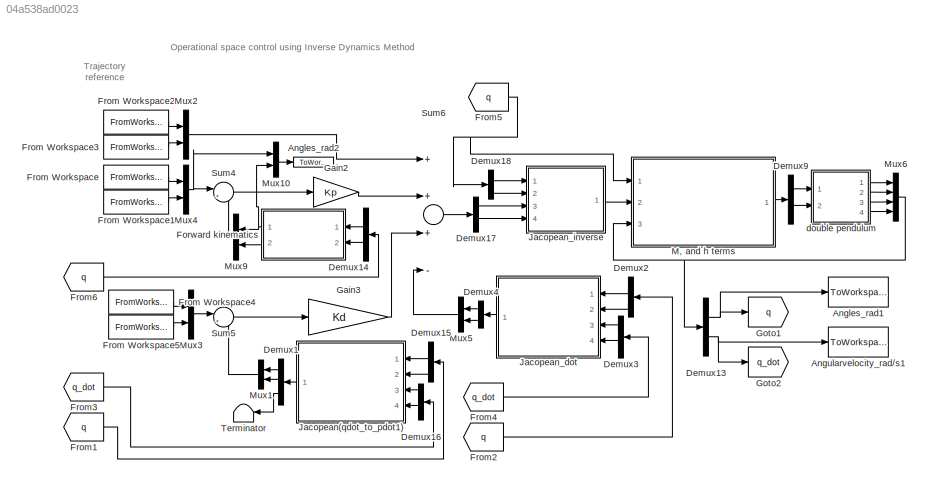
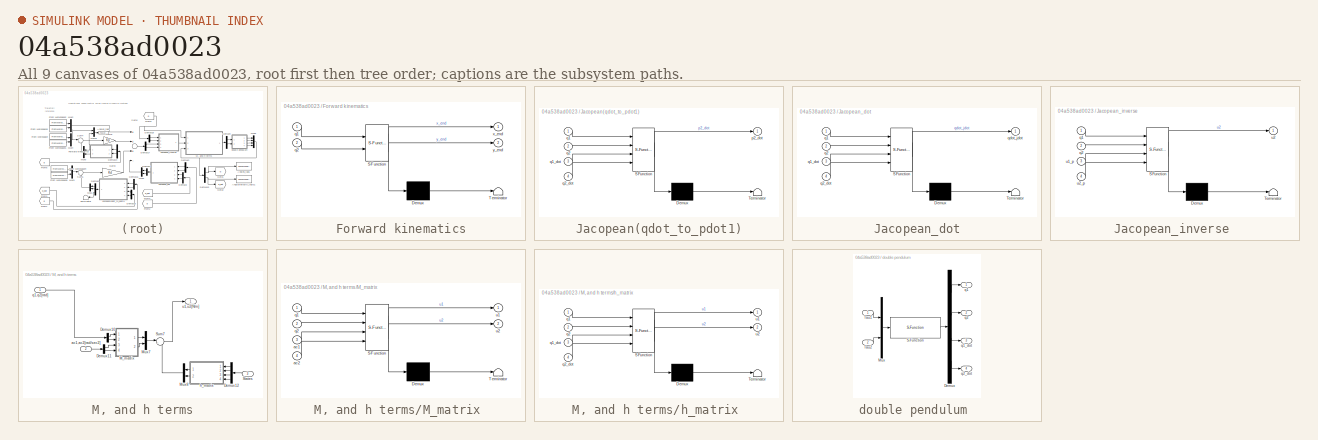
[diagram: thumbnail index - all 9 canvases of the model, root first then tree order]
MODEL slx_04a538ad0023
KIND model
CONFIG AbsTol = auto
CONFIG EnableMultiTasking = off
CONFIG FixedStep = auto
CONFIG MaxStep = auto
CONFIG MinStep = auto
CONFIG RelTol = 1e-3
CONFIG SampleTimeConstraint = Unconstrained
CONFIG Solver = ode45
CONFIG SolverName = ode45
CONFIG StartTime = 0.0
CONFIG StopTime = 5
BLOCK [ToWorkspace] Angles_rad1
  FixptAsFi = on
  MaxDataPoints = inf
  Ports = [1]
  SampleTime = -1
  Save2DSignal = 3-D array (concatenate along third dimension)
  SaveFormat = Timeseries
  VariableName = q
BLOCK [ToWorkspace] Angles_rad2
  FixptAsFi = on
  MaxDataPoints = inf
  Ports = [1]
  SampleTime = -1
  Save2DSignal = 3-D array (concatenate along third dimension)
  SaveFormat = Timeseries
  VariableName = xs
BLOCK [ToWorkspace] Angularvelocity_rad//s1
  FixptAsFi = on
  MaxDataPoints = inf
  Ports = [1]
  SampleTime = -1
  Save2DSignal = 3-D array (concatenate along third dimension)
  SaveFormat = Timeseries
  VariableName = q_dot
BLOCK [Demux] Demux1
  DisplayOption = bar
  Outputs = 3
  Ports = [1, 3]
BLOCK [Demux] Demux13
  DisplayOption = bar
  Outputs = 2
  Ports = [1, 2]
BLOCK [Demux] Demux14
  DisplayOption = bar
  Outputs = 2
  Ports = [1, 2]
BLOCK [Demux] Demux15
  DisplayOption = bar
  Outputs = 2
  Ports = [1, 2]
BLOCK [Demux] Demux16
  DisplayOption = bar
  Outputs = 2
  Ports = [1, 2]
BLOCK [Demux] Demux17
  DisplayOption = bar
  Outputs = 2
  Ports = [1, 2]
BLOCK [Demux] Demux18
  DisplayOption = bar
  Outputs = 2
  Ports = [1, 2]
BLOCK [Demux] Demux2
  DisplayOption = bar
  Outputs = 2
  Ports = [1, 2]
BLOCK [Demux] Demux3
  DisplayOption = bar
  Outputs = 2
  Ports = [1, 2]
BLOCK [Demux] Demux4
  DisplayOption = bar
  Outputs = 2
  Ports = [1, 2]
BLOCK [Demux] Demux9
  DisplayOption = bar
  Outputs = 2
  Ports = [1, 2]
BLOCK [SubSystem] Forward kinematics
  ErrorFcn = Stateflow.Translate.translate
  PermitHierarchicalResolution = ExplicitOnly
  Ports = [2, 2]
  RequestExecContextInheritance = off
  SFBlockType = MATLAB Function
  TreatAsAtomicUnit = on
BLOCK [Demux] Forward kinematics/ Demux 
  Outputs = 1
  Ports = [1, 1]
BLOCK [S-Function] Forward kinematics/ SFunction 
  EnableBusSupport = on
  FunctionName = sf_sfun
  PortCounts = [2 3]
  Ports = [2, 3]
  SFcnIsStateOwnerBlock = off
  SFunctionDeploymentMode = off
  Tag = Stateflow S-Function s_VI_operational_InvD_contr 7
BLOCK [Terminator] Forward kinematics/ Terminator 
BLOCK [Inport] Forward kinematics/q1
  IconDisplay = Port number
BLOCK [Inport] Forward kinematics/q2
  IconDisplay = Port number
  Port = 2
BLOCK [Outport] Forward kinematics/x_end
  IconDisplay = Port number
BLOCK [Outport] Forward kinematics/y_end
  IconDisplay = Port number
  Port = 2
BLOCK [FromWorkspace] From Workspace
  SampleTime = 0
  VariableName = x2des
  ZeroCross = on
BLOCK [FromWorkspace] From Workspace1
  SampleTime = 0
  VariableName = y2des
  ZeroCross = on
BLOCK [FromWorkspace] From Workspace2
  SampleTime = 0
  VariableName = x2des_dotdot
  ZeroCross = on
BLOCK [FromWorkspace] From Workspace3
  SampleTime = 0
  VariableName = y2des_dotdot
  ZeroCross = on
BLOCK [FromWorkspace] From Workspace4
  SampleTime = 0
  VariableName = x2des_dot
  ZeroCross = on
BLOCK [FromWorkspace] From Workspace5
  SampleTime = 0
  VariableName = y2des_dot
  ZeroCross = on
BLOCK [From] From1
  GotoTag = q
BLOCK [From] From2
  GotoTag = q
BLOCK [From] From3
  GotoTag = q_dot
BLOCK [From] From4
  GotoTag = q_dot
BLOCK [From] From5
  GotoTag = q
BLOCK [From] From6
  GotoTag = q
BLOCK [Gain] Gain2
  Gain = Kp
  OutDataTypeStr = Inherit: Inherit via internal rule
  ParamDataTypeStr = Inherit: Inherit via internal rule
  SaturateOnIntegerOverflow = off
BLOCK [Gain] Gain3
  Gain = Kd
  OutDataTypeStr = Inherit: Inherit via internal rule
  ParamDataTypeStr = Inherit: Inherit via internal rule
  SaturateOnIntegerOverflow = off
BLOCK [Goto] Goto1
  GotoTag = q
BLOCK [Goto] Goto2
  GotoTag = q_dot
BLOCK [SubSystem] Jacopean(qdot_to_pdot1)
  ErrorFcn = Stateflow.Translate.translate
  PermitHierarchicalResolution = ExplicitOnly
  Ports = [4, 1]
  RequestExecContextInheritance = off
  SFBlockType = MATLAB Function
  TreatAsAtomicUnit = on
BLOCK [Demux] Jacopean(qdot_to_pdot1)/ Demux 
  Outputs = 1
  Ports = [1, 1]
BLOCK [S-Function] Jacopean(qdot_to_pdot1)/ SFunction 
  EnableBusSupport = on
  FunctionName = sf_sfun
  PortCounts = [4 2]
  Ports = [4, 2]
  SFcnIsStateOwnerBlock = off
  SFunctionDeploymentMode = off
  Tag = Stateflow S-Function s_VI_operational_InvD_contr 8
BLOCK [Terminator] Jacopean(qdot_to_pdot1)/ Terminator 
BLOCK [Outport] Jacopean(qdot_to_pdot1)/p2_dot
  IconDisplay = Port number
BLOCK [Inport] Jacopean(qdot_to_pdot1)/q1
  IconDisplay = Port number
BLOCK [Inport] Jacopean(qdot_to_pdot1)/q1_dot
  IconDisplay = Port number
  Port = 3
BLOCK [Inport] Jacopean(qdot_to_pdot1)/q2
  IconDisplay = Port number
  Port = 2
BLOCK [Inport] Jacopean(qdot_to_pdot1)/q2_dot
  IconDisplay = Port number
  Port = 4
BLOCK [SubSystem] Jacopean_dot
  ErrorFcn = Stateflow.Translate.translate
  PermitHierarchicalResolution = ExplicitOnly
  Ports = [4, 1]
  RequestExecContextInheritance = off
  SFBlockType = MATLAB Function
  TreatAsAtomicUnit = on
BLOCK [Demux] Jacopean_dot/ Demux 
  Outputs = 1
  Ports = [1, 1]
BLOCK [S-Function] Jacopean_dot/ SFunction 
  EnableBusSupport = on
  FunctionName = sf_sfun
  PortCounts = [4 2]
  Ports = [4, 2]
  SFcnIsStateOwnerBlock = off
  SFunctionDeploymentMode = off
  Tag = Stateflow S-Function s_VI_operational_InvD_contr 1
BLOCK [Terminator] Jacopean_dot/ Terminator 
BLOCK [Inport] Jacopean_dot/q1
  IconDisplay = Port number
BLOCK [Inport] Jacopean_dot/q1_dot
  IconDisplay = Port number
  Port = 3
BLOCK [Inport] Jacopean_dot/q2
  IconDisplay = Port number
  Port = 2
BLOCK [Inport] Jacopean_dot/q2_dot
  IconDisplay = Port number
  Port = 4
BLOCK [Outport] Jacopean_dot/qdot_jdot
  IconDisplay = Port number
BLOCK [SubSystem] Jacopean_inverse 
  ErrorFcn = Stateflow.Translate.translate
  PermitHierarchicalResolution = ExplicitOnly
  Ports = [4, 1]
  RequestExecContextInheritance = off
  SFBlockType = MATLAB Function
  TreatAsAtomicUnit = on
BLOCK [Demux] Jacopean_inverse / Demux 
  Outputs = 1
  Ports = [1, 1]
BLOCK [S-Function] Jacopean_inverse / SFunction 
  EnableBusSupport = on
  FunctionName = sf_sfun
  PortCounts = [4 2]
  Ports = [4, 2]
  SFcnIsStateOwnerBlock = off
  SFunctionDeploymentMode = off
  Tag = Stateflow S-Function s_VI_operational_InvD_contr 9
BLOCK [Terminator] Jacopean_inverse / Terminator 
BLOCK [Inport] Jacopean_inverse /q1
  IconDisplay = Port number
BLOCK [Inport] Jacopean_inverse /q2
  IconDisplay = Port number
  Port = 2
BLOCK [Inport] Jacopean_inverse /u1_p
  IconDisplay = Port number
  Port = 3
BLOCK [Outport] Jacopean_inverse /u2
  IconDisplay = Port number
BLOCK [Inport] Jacopean_inverse /u2_p
  IconDisplay = Port number
  Port = 4
BLOCK [SubSystem] M, and h terms
  Ports = [3, 1]
  RequestExecContextInheritance = off
BLOCK [Demux] M, and h terms/Demux10
  DisplayOption = bar
  Outputs = 2
  Ports = [1, 2]
BLOCK [Demux] M, and h terms/Demux11
  DisplayOption = bar
  Outputs = 2
  Ports = [1, 2]
BLOCK [Demux] M, and h terms/Demux12
  DisplayOption = bar
  Ports = [1, 4]
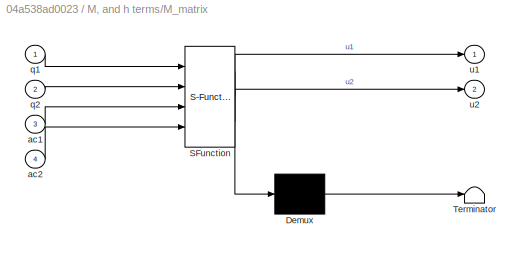
BLOCK [SubSystem] M, and h terms/M_matrix 
  ErrorFcn = Stateflow.Translate.translate
  PermitHierarchicalResolution = ExplicitOnly
  Ports = [4, 2]
  RequestExecContextInheritance = off
  SFBlockType = MATLAB Function
  TreatAsAtomicUnit = on
BLOCK [Demux] M, and h terms/M_matrix / Demux 
  Outputs = 1
  Ports = [1, 1]
BLOCK [S-Function] M, and h terms/M_matrix / SFunction 
  EnableBusSupport = on
  FunctionName = sf_sfun
  PortCounts = [4 3]
  Ports = [4, 3]
  SFcnIsStateOwnerBlock = off
  SFunctionDeploymentMode = off
  Tag = Stateflow S-Function s_VI_operational_InvD_contr 5
BLOCK [Terminator] M, and h terms/M_matrix / Terminator 
BLOCK [Inport] M, and h terms/M_matrix /ac1
  IconDisplay = Port number
  Port = 3
BLOCK [Inport] M, and h terms/M_matrix /ac2
  IconDisplay = Port number
  Port = 4
BLOCK [Inport] M, and h terms/M_matrix /q1
  IconDisplay = Port number
BLOCK [Inport] M, and h terms/M_matrix /q2
  IconDisplay = Port number
  Port = 2
BLOCK [Outport] M, and h terms/M_matrix /u1
  IconDisplay = Port number
BLOCK [Outport] M, and h terms/M_matrix /u2
  IconDisplay = Port number
  Port = 2
BLOCK [Mux] M, and h terms/Mux7
  DisplayOption = bar
  Inputs = 2
  Ports = [2, 1]
BLOCK [Mux] M, and h terms/Mux8
  DisplayOption = bar
  Inputs = 2
  Ports = [2, 1]
BLOCK [Inport] M, and h terms/States
  IconDisplay = Port number
  Port = 3
BLOCK [Sum] M, and h terms/Sum7
  IconShape = round
  InputSameDT = off
  Inputs = |++
  OutDataTypeStr = Inherit: Inherit via internal rule
  Ports = [2, 1]
  SaturateOnIntegerOverflow = off
BLOCK [Inport] M, and h terms/ac1,ac2[rad//sec2]
  IconDisplay = Port number
  Port = 2
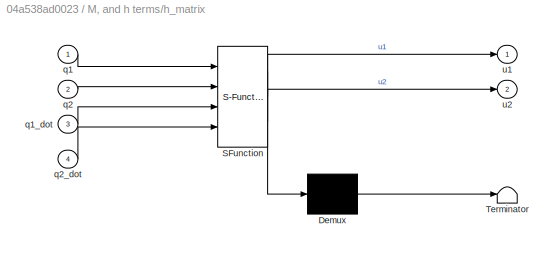
BLOCK [SubSystem] M, and h terms/h_matrix 
  ErrorFcn = Stateflow.Translate.translate
  PermitHierarchicalResolution = ExplicitOnly
  Ports = [4, 2]
  RequestExecContextInheritance = off
  SFBlockType = MATLAB Function
  TreatAsAtomicUnit = on
BLOCK [Demux] M, and h terms/h_matrix / Demux 
  Outputs = 1
  Ports = [1, 1]
BLOCK [S-Function] M, and h terms/h_matrix / SFunction 
  EnableBusSupport = on
  FunctionName = sf_sfun
  PortCounts = [4 3]
  Ports = [4, 3]
  SFcnIsStateOwnerBlock = off
  SFunctionDeploymentMode = off
  Tag = Stateflow S-Function s_VI_operational_InvD_contr 6
BLOCK [Terminator] M, and h terms/h_matrix / Terminator 
BLOCK [Inport] M, and h terms/h_matrix /q1
  IconDisplay = Port number
BLOCK [Inport] M, and h terms/h_matrix /q1_dot
  IconDisplay = Port number
  Port = 3
BLOCK [Inport] M, and h terms/h_matrix /q2
  IconDisplay = Port number
  Port = 2
BLOCK [Inport] M, and h terms/h_matrix /q2_dot
  IconDisplay = Port number
  Port = 4
BLOCK [Outport] M, and h terms/h_matrix /u1
  IconDisplay = Port number
BLOCK [Outport] M, and h terms/h_matrix /u2
  IconDisplay = Port number
  Port = 2
BLOCK [Inport] M, and h terms/q1,q2[rad]
  IconDisplay = Port number
BLOCK [Outport] M, and h terms/u1,u2[N//m]
  IconDisplay = Port number
BLOCK [Mux] Mux1
  DisplayOption = bar
  Inputs = 2
  Ports = [2, 1]
BLOCK [Mux] Mux10
  DisplayOption = bar
  Inputs = 2
  Ports = [2, 1]
BLOCK [Mux] Mux2
  DisplayOption = bar
  Inputs = 2
  Ports = [2, 1]
BLOCK [Mux] Mux3
  DisplayOption = bar
  Inputs = 2
  Ports = [2, 1]
BLOCK [Mux] Mux4
  DisplayOption = bar
  Inputs = 2
  Ports = [2, 1]
BLOCK [Mux] Mux5
  DisplayOption = bar
  Inputs = 2
  Ports = [2, 1]
BLOCK [Mux] Mux6
  DisplayOption = bar
  Ports = [4, 1]
BLOCK [Mux] Mux9
  DisplayOption = bar
  Inputs = 2
  Ports = [2, 1]
BLOCK [Sum] Sum4
  IconShape = round
  InputSameDT = off
  Inputs = |+-
  OutDataTypeStr = Inherit: Inherit via internal rule
  Ports = [2, 1]
  SaturateOnIntegerOverflow = off
BLOCK [Sum] Sum5
  IconShape = round
  InputSameDT = off
  Inputs = |+-
  OutDataTypeStr = Inherit: Inherit via internal rule
  Ports = [2, 1]
  SaturateOnIntegerOverflow = off
BLOCK [Sum] Sum6
  InputSameDT = off
  Inputs = +++-
  OutDataTypeStr = Inherit: Inherit via internal rule
  Ports = [4, 1]
  SaturateOnIntegerOverflow = off
BLOCK [Terminator] Terminator
BLOCK [SubSystem] double pendulum 
  Ports = [2, 4]
  RequestExecContextInheritance = off
BLOCK [Demux] double pendulum /Demux
  DisplayOption = bar
  Ports = [1, 4]
BLOCK [Mux] double pendulum /Mux
  DisplayOption = bar
  Inputs = 2
  Ports = [2, 1]
BLOCK [S-Function] double pendulum /S-Function
  EnableBusSupport = off
  FunctionName = m_I_doublependulum
  Parameters = pi/4 -pi/2 0 0
  Ports = [1, 1]
  SFcnIsStateOwnerBlock = off
  SFunctionDeploymentMode = off
BLOCK [Inport] double pendulum /Tau1
  IconDisplay = Port number
BLOCK [Inport] double pendulum /Tau2 
  IconDisplay = Port number
  Port = 2
BLOCK [Outport] double pendulum /q1
  IconDisplay = Port number
BLOCK [Outport] double pendulum /q1_dot 
  IconDisplay = Port number
  Port = 3
BLOCK [Outport] double pendulum /q2 
  IconDisplay = Port number
  Port = 2
BLOCK [Outport] double pendulum /q2_dot
  IconDisplay = Port number
  Port = 4
ANNOTATION (root): Trajectory reference
ANNOTATION (root): Operational space control using Inverse Dynamics Method
NET Demux13:1 -> Angles_rad1:1, Goto1:1
NET Demux13:2 -> Angularvelocity_rad//s1:1, Goto2:1
LINE Demux14:1 -> Forward kinematics:1
LINE Demux14:2 -> Forward kinematics:2
LINE Demux15:1 -> Jacopean(qdot_to_pdot1):1
LINE Demux15:2 -> Jacopean(qdot_to_pdot1):2
LINE Demux16:1 -> Jacopean(qdot_to_pdot1):3
LINE Demux16:2 -> Jacopean(qdot_to_pdot1):4
LINE Demux17:1 -> Jacopean_inverse :3
LINE Demux17:2 -> Jacopean_inverse :4
LINE Demux18:1 -> Jacopean_inverse :1
LINE Demux18:2 -> Jacopean_inverse :2
LINE Demux1:1 -> Mux1:1
LINE Demux1:2 -> Mux1:2
LINE Demux1:3 -> Terminator:1
LINE Demux2:1 -> Jacopean_dot:1
LINE Demux2:2 -> Jacopean_dot:2
LINE Demux3:1 -> Jacopean_dot:3
LINE Demux3:2 -> Jacopean_dot:4
LINE Demux4:1 -> Mux5:1
LINE Demux4:2 -> Mux5:2
LINE Demux9:1 -> double pendulum :1
LINE Demux9:2 -> double pendulum :2
NET Forward kinematics:1 -> Mux10:2, Mux9:1
LINE Forward kinematics:2 -> Mux9:2
LINE From Workspace1:1 -> Mux4:2
LINE From Workspace2:1 -> Mux2:1
LINE From Workspace3:1 -> Mux2:2
LINE From Workspace4:1 -> Mux3:1
LINE From Workspace5:1 -> Mux3:2
LINE From Workspace:1 -> Mux4:1
LINE From1:1 -> Demux15:1
LINE From2:1 -> Demux2:1
LINE From3:1 -> Demux16:1
LINE From4:1 -> Demux3:1
NET From5:1 -> Demux18:1, M, and h terms:1
LINE From6:1 -> Demux14:1
LINE Gain2:1 -> Sum6:2
LINE Gain3:1 -> Sum6:3
LINE Jacopean(qdot_to_pdot1):1 -> Demux1:1
LINE Jacopean_dot:1 -> Demux4:1
LINE Jacopean_inverse :1 -> M, and h terms:2
LINE M, and h terms/Demux10:1 -> M, and h terms/M_matrix :1
LINE M, and h terms/Demux10:2 -> M, and h terms/M_matrix :2
LINE M, and h terms/Demux11:1 -> M, and h terms/M_matrix :3
LINE M, and h terms/Demux11:2 -> M, and h terms/M_matrix :4
LINE M, and h terms/Demux12:1 -> M, and h terms/h_matrix :1
LINE M, and h terms/Demux12:2 -> M, and h terms/h_matrix :2
LINE M, and h terms/Demux12:3 -> M, and h terms/h_matrix :3
LINE M, and h terms/Demux12:4 -> M, and h terms/h_matrix :4
LINE M, and h terms/M_matrix :1 -> M, and h terms/Mux7:1
LINE M, and h terms/M_matrix :2 -> M, and h terms/Mux7:2
LINE M, and h terms/Mux7:1 -> M, and h terms/Sum7:1
LINE M, and h terms/Mux8:1 -> M, and h terms/Sum7:2
LINE M, and h terms/States:1 -> M, and h terms/Demux12:1
LINE M, and h terms/Sum7:1 -> M, and h terms/u1,u2[N//m]:1
LINE M, and h terms/ac1,ac2[rad//sec2]:1 -> M, and h terms/Demux11:1
LINE M, and h terms/h_matrix :1 -> M, and h terms/Mux8:1
LINE M, and h terms/h_matrix :2 -> M, and h terms/Mux8:2
LINE M, and h terms/q1,q2[rad]:1 -> M, and h terms/Demux10:1
LINE M, and h terms:1 -> Demux9:1
LINE Mux10:1 -> Angles_rad2:1
LINE Mux1:1 -> Sum5:2
LINE Mux2:1 -> Sum6:1
LINE Mux3:1 -> Sum5:1
NET Mux4:1 -> Mux10:1, Sum4:1
LINE Mux5:1 -> Sum6:4
NET Mux6:1 -> Demux13:1, M, and h terms:3
LINE Mux9:1 -> Sum4:2
LINE Sum4:1 -> Gain2:1
LINE Sum5:1 -> Gain3:1
LINE Sum6:1 -> Demux17:1
LINE double pendulum /Demux:1 -> double pendulum /q1:1
LINE double pendulum /Demux:2 -> double pendulum /q2 :1
LINE double pendulum /Demux:3 -> double pendulum /q1_dot :1
LINE double pendulum /Demux:4 -> double pendulum /q2_dot:1
LINE double pendulum /Mux:1 -> double pendulum /S-Function:1
LINE double pendulum /S-Function:1 -> double pendulum /Demux:1
LINE double pendulum /Tau1:1 -> double pendulum /Mux:1
LINE double pendulum /Tau2 :1 -> double pendulum /Mux:2
LINE double pendulum :1 -> Mux6:1
LINE double pendulum :2 -> Mux6:2
LINE double pendulum :3 -> Mux6:3
LINE double pendulum :4 -> Mux6:4
note: NET lines group one-source signal fan-out (src -> all destinations, sorted); 1:1 wires keep LINE
CHART Jacopean_dot states=1 transitions=1
  STATE_LABEL 'eML_blk_kernel()'
  STATE_LABEL 'SCRIPT:\nfunction qdot_jdot  = fcn(q1,q2,q1_dot,q2_dot)\n\nL1=1;L2=1;\n% A=[-L1*sin(q1)           0;\n%     L1*cos(q1)           0;\n%     1                    0]\n% B=[-L1*sin(q1)-L2*sin(q1+q2)        -L2*sin(q1+q2);\n%     L1*cos(q1)+L2*cos(q1+q2)         L2*cos(q1+q2);\n%     1                                1              ];\n% p1_dot=A*[q1_dot;q2_dot]\nB=[-L1*cos(q1)*q1_dot-L2*cos(q1+q2)*(q1_dot+q2_dot)...<+148ch>'
CHART M, and h terms/M_matrix
 states=1 transitions=1
  STATE_LABEL 'eML_blk_kernel()'
  STATE_LABEL 'SCRIPT:\nfunction [u1,u2] = fcn(q1,q2,ac1,ac2)\nGrav=10;     %%Gravity acceleration constant\nM=1;       \nL1=1;\nL2=1;\nGz=1;\nbeta=20;\nTs=0.01;    %%sampling time\nG1=M*(L1^2+L2^2)+Gz;\nG2=M*L2^2+Gz;\nH11=G1+2*M*L1*L2*cos(q2);   H12=G2+  M*L1*L2*cos(q2);\nH21=G2+  M*L1*L2*cos(q2);   H22=G2;\n\nu1= H11*ac1+H12*ac2;\nu2= H21*ac1+H22*ac2;\n'
CHART M, and h terms/h_matrix
 states=1 transitions=1
  STATE_LABEL 'eML_blk_kernel()'
  STATE_LABEL 'SCRIPT:\nfunction [u1,u2] = fcn(q1,q2,q1_dot,q2_dot)\nGrav=10;     %%Gravity acceleration constant\nM=1;       \nL1=1;\nL2=1;\nGz=1;\nbeta=20;\nG1=M*(L1^2+L2^2)+Gz;\nG2=M*L2^2+Gz;\nC11=-2*M*L1*L2*sin(q2)*q2_dot;  C12=-M*L1*L2*cos(q2)*q2_dot;\nC21=M*L1*L2*sin(q2)*q1_dot;     C22=0;\ng1=M*Grav*(L1*cos(q1)+L2*cos(q1+q2));    g2=M*Grav*L2*cos(q1+q2);\nu1=[C11 C12]*[q1_dot;q2_dot]+g1+[beta 0]*[q1_dot;q2_dot];\nu2=[C...<+52ch>'
CHART Forward kinematics states=1 transitions=1
  STATE_LABEL 'eML_blk_kernel()'
  STATE_LABEL 'SCRIPT:\nfunction [x_end,y_end] = fcn(q1,q2)\n\nL1=1;L2=1;\n\nx = [L1*cos(q1),  L1*cos(q1)+L2*cos(q1+q2)];\ny = [L1*sin(q1),  L1*sin(q1)+L2*sin(q1+q2)];\nx_end=x(2);\ny_end=y(2);\n\n'
CHART Jacopean(qdot_to_pdot1) states=1 transitions=1
  STATE_LABEL 'eML_blk_kernel()'
  STATE_LABEL 'SCRIPT:\nfunction p2_dot  = fcn(q1,q2,q1_dot,q2_dot)\n\nL1=1;L2=1;\nA=[-L1*sin(q1)           0;\n    L1*cos(q1)           0;\n    1                    0];\nB=[-L1*sin(q1)-L2*sin(q1+q2)        -L2*sin(q1+q2);\n    L1*cos(q1)+L2*cos(q1+q2)         L2*cos(q1+q2);\n    1                                1              ];\np1_dot=A*[q1_dot;q2_dot];\np2_dot=B*[q1_dot;q2_dot];\n\n'
CHART Jacopean_inverse
 states=1 transitions=1
  STATE_LABEL 'eML_blk_kernel()'
  STATE_LABEL 'SCRIPT:\nfunction u2  = fcn(q1,q2,u1_p,u2_p)\n\nL1=1;L2=1;\nA=[-L1*sin(q1)           0;\n    L1*cos(q1)           0;\n  ];\n\nB=[-L1*sin(q1)-L2*sin(q1+q2)        -L2*sin(q1+q2);\n    L1*cos(q1)+L2*cos(q1+q2)         L2*cos(q1+q2);\n   ];\n\nu1=A*[u1_p;u2_p];\nu2=inv(B)*[u1_p;u2_p];\n\n'
